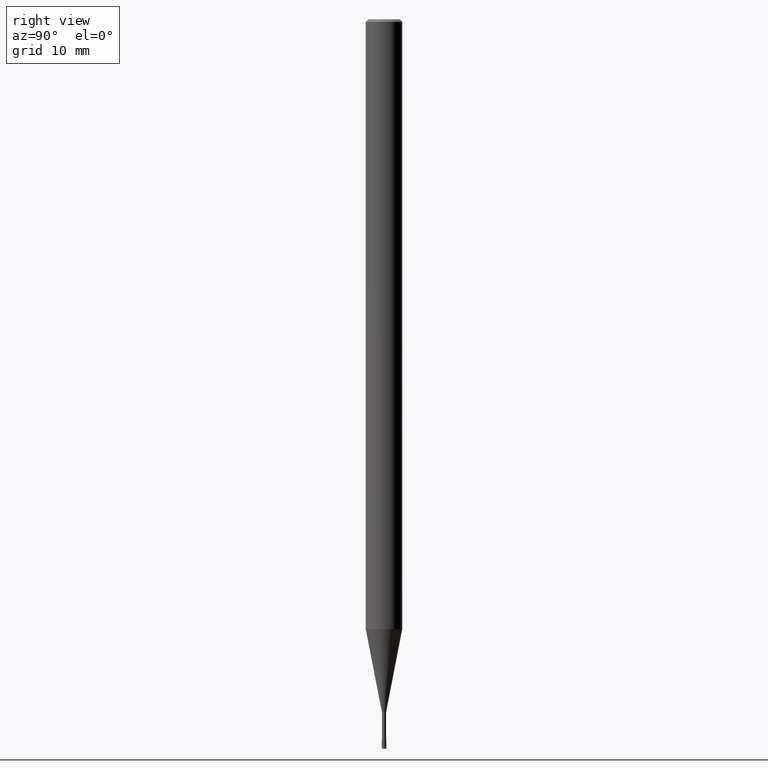
[diagram: clean part render]
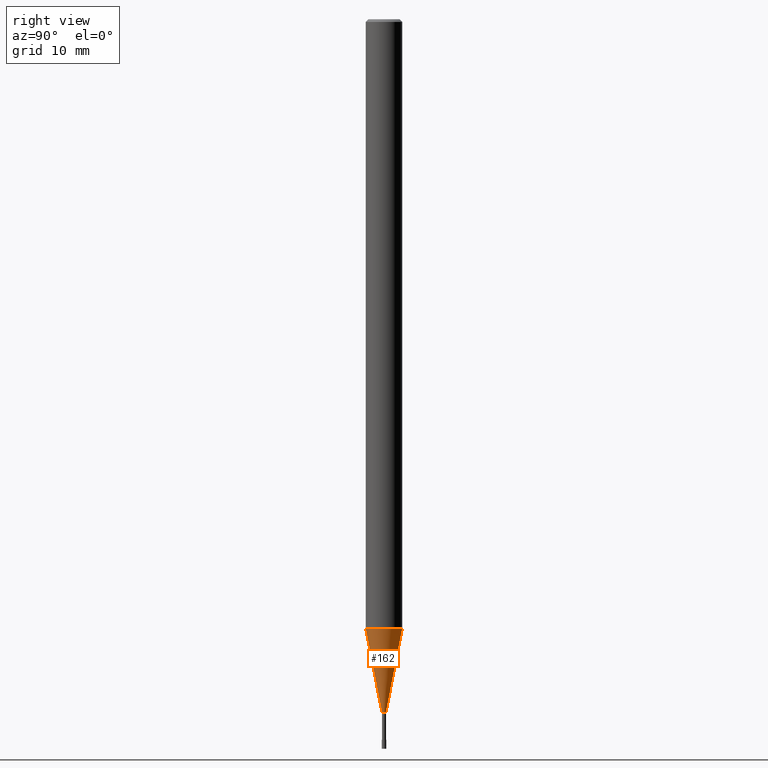
[diagram: same view with one face highlighted and labeled with its STEP entity id]
A machine part, right view. The second image highlights one B-rep face of the part: STEP entity #162.
In plain terms, the highlighted conical surface has half-angle 11 deg.
Its self-contained STEP definition (entity closure, byte-faithful):
#94=EDGE_CURVE('',#100,#106,#231,.T.);
#100=VERTEX_POINT('',#237);
#106=VERTEX_POINT('',#244);
#110=EDGE_CURVE('',#188,#178,#249,.T.);
#150=EDGE_CURVE('',#188,#100,#297,.T.);
#162=ADVANCED_FACE('',(#310),#311,.T.);
#178=VERTEX_POINT('',#329);
#180=EDGE_CURVE('',#106,#178,#331,.T.);
#188=VERTEX_POINT('',#340);
#231=CIRCLE('',#378,0.22495);
#237=CARTESIAN_POINT('',(0.0,0.22495,-76.0));
#244=CARTESIAN_POINT('',(2.75475199292344E-017,-0.22495,-76.0));
#249=CIRCLE('',#400,1.99995);
#297=LINE('',#454,#455);
#310=FACE_OUTER_BOUND('',#473,.T.);
#311=CONICAL_SURFACE('',#474,1.11245,0.191977672522416);
#329=CARTESIAN_POINT('',(2.44915147732706E-016,-1.99995,-66.868));
#331=LINE('',#498,#499);
#340=CARTESIAN_POINT('',(0.0,1.99995,-66.868));
#378=AXIS2_PLACEMENT_3D('',#545,#546,#547);
#400=AXIS2_PLACEMENT_3D('',#571,#572,#573);
#454=CARTESIAN_POINT('',(-1.3623133383097E-016,1.11245,-71.434));
#455=VECTOR('',#640,1.0);
#473=EDGE_LOOP('',(#655,#656,#657,#658));
#474=AXIS2_PLACEMENT_3D('',#659,#660,#661);
#498=CARTESIAN_POINT('',(1.3623133383097E-016,-1.11245,-71.434));
#499=VECTOR('',#686,1.0);
#545=CARTESIAN_POINT('',(0.0,0.0,-76.0));
#546=DIRECTION('',(0.0,0.0,-1.0));
#547=DIRECTION('',(0.0,1.0,0.0));
#571=CARTESIAN_POINT('',(0.0,0.0,-66.868));
#572=DIRECTION('',(0.0,0.0,-1.0));
#573=DIRECTION('',(0.0,1.0,0.0));
#640=DIRECTION('',(2.33655635855942E-017,-0.190800607171954,-0.981628813912272));
#655=ORIENTED_EDGE('',*,*,#150,.F.);
#656=ORIENTED_EDGE('',*,*,#110,.T.);
#657=ORIENTED_EDGE('',*,*,#180,.F.);
#658=ORIENTED_EDGE('',*,*,#94,.F.);
#659=CARTESIAN_POINT('',(0.0,0.0,-71.434));
#660=DIRECTION('',(-0.0,-0.0,1.0));
#661=DIRECTION('',(0.0,1.0,0.0));
#686=DIRECTION('',(2.33655635855942E-017,-0.190800607171954,0.981628813912272));